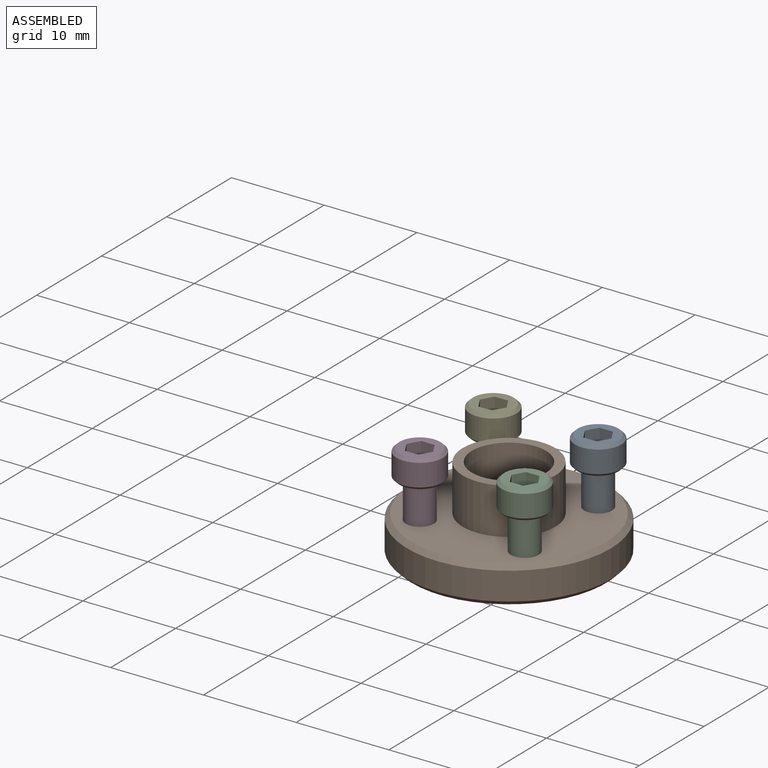
[diagram: assembled view]
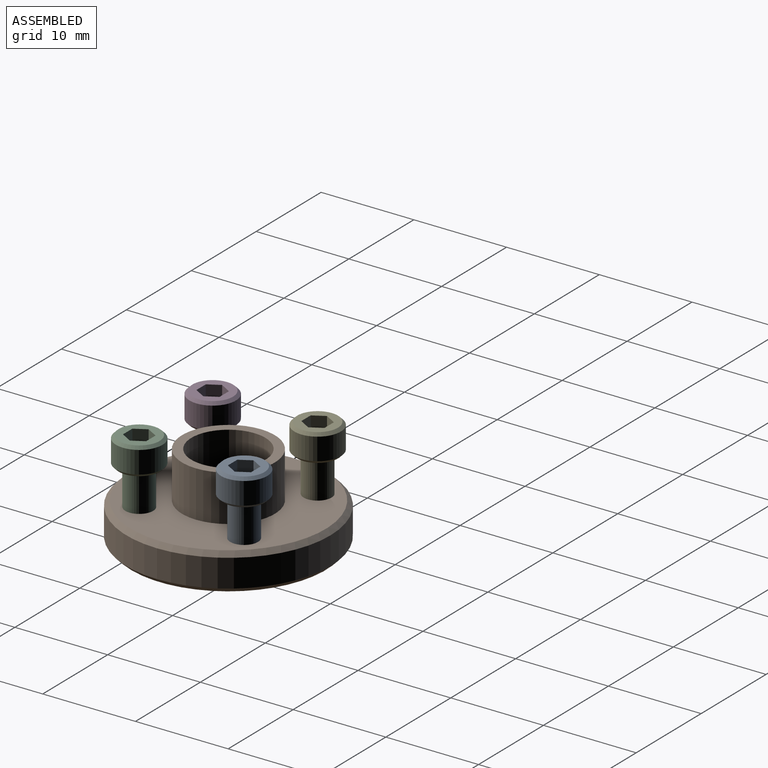
[diagram: assembled view, second angle]
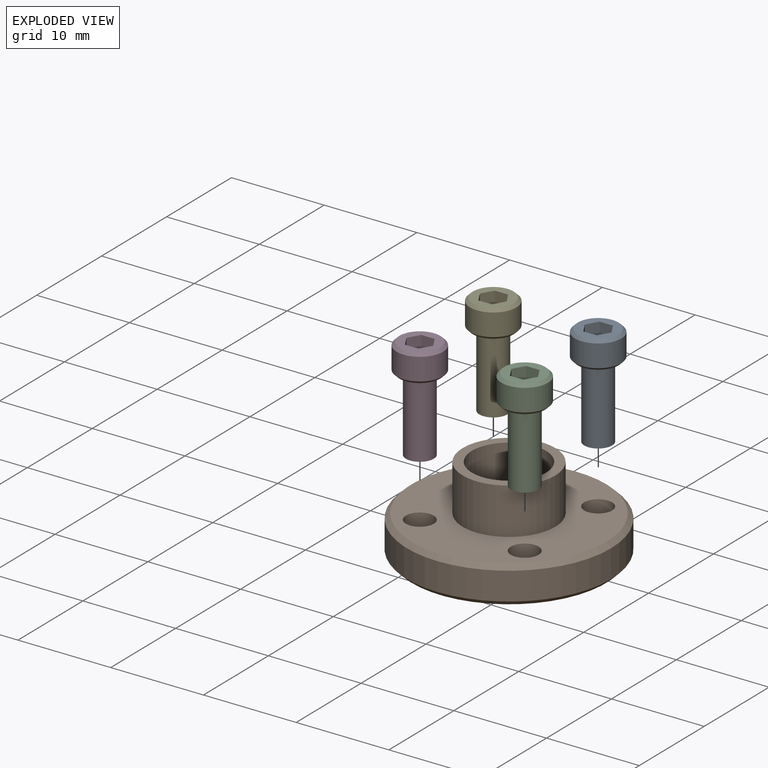
[diagram: exploded view]
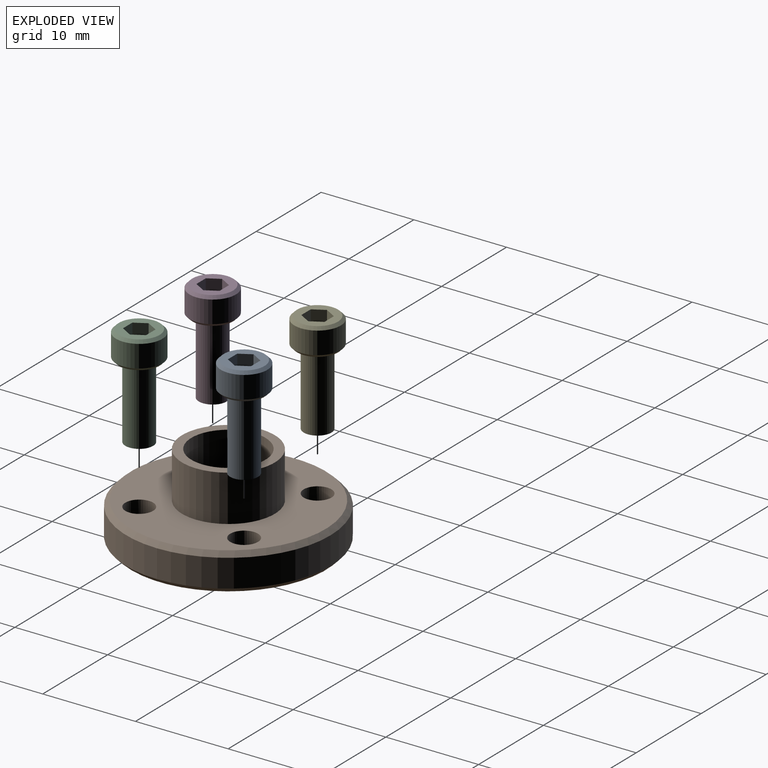
[diagram: exploded view, second angle]
ASSEMBLY  parts=5 mates=4
PART A: 14 faces, bbox 5x5x11 mm
  f0: plane 4.4x4.4mm, normal (0,0,1), area 9.8mm2, adj f5,f7,f8,f9,f10,f11,f12
  f1: cylinder r=2.5mm len=5mm, axis (0,0,1), area 37.7mm2, adj f5,f6
  f2: plane 4.4x4.4mm, normal (0,0,-1), area 8.1mm2, adj f3,f6
  f3: cylinder r=1.5mm len=8mm, axis (0,0,1), area 75.4mm2, adj f2,f4
  f4: plane 3x3mm, normal (0,0,-1), area 7.1mm2, adj f3
  f5: cone r=2.2mm half-angle=45deg, axis (0,0,-1), area 6.3mm2, adj f0,f1
  f6: cone r=2.5mm half-angle=45deg, axis (0,0,1), area 6.3mm2, adj f1,f2
  f7: plane 1.5x1.25mm, normal (-0.87,0.5,0), area 2.2mm2, adj f0,f8,f12,f13
  f8: plane 1.5x1.25mm, normal (-0.87,-0.5,0), area 2.2mm2, adj f0,f7,f9,f13
  f9: plane 1.5x1.44mm, normal (0,-1,0), area 2.2mm2, adj f0,f8,f10,f13
  f10: plane 1.5x1.25mm, normal (0.87,-0.5,0), area 2.2mm2, adj f0,f9,f11,f13
  f11: plane 1.5x1.25mm, normal (0.87,0.5,0), area 2.2mm2, adj f0,f10,f12,f13
  f12: plane 1.5x1.44mm, normal (0,1,0), area 2.2mm2, adj f0,f7,f11,f13
  f13: plane 2.89x2.5mm, normal (0,0,1), area 5.4mm2, adj f7,f8,f9,f10,f11,f12
PART B: 14 faces, bbox 22x22x10 mm
  f0: cylinder r=5mm len=10mm, axis (0,0,1), area 31.4mm2, adj f1,f7
  f1: plane 10x10mm, normal (0,0,-1), area 28.3mm2, adj f0,f2
  f2: cylinder r=4mm len=10mm, axis (0,0,1), area 251.3mm2, adj f1,f3
  f3: plane 10x10mm, normal (0,0,1), area 28.3mm2, adj f2,f4
  f4: cylinder r=5mm len=10mm, axis (0,0,1), area 157.1mm2, adj f3,f5
  f5: plane 21x21mm, normal (0,0,1), area 239.5mm2, adj f4,f9,f10,f11,f12,f13
  f6: cylinder r=11mm len=22mm, axis (0,0,1), area 207.3mm2, adj f8,f9
  f7: plane 21x21mm, normal (0,0,-1), area 239.5mm2, adj f0,f8,f10,f11,f12,f13
  f8: cone r=11mm half-angle=45deg, axis (0,0,1), area 47.8mm2, adj f6,f7
  f9: cone r=10.5mm half-angle=45deg, axis (0,0,-1), area 47.8mm2, adj f5,f6
  f10: cylinder r=1.5mm len=4mm, axis (0,0,1), area 37.7mm2, adj f5,f7
  f11: cylinder r=1.5mm len=4mm, axis (0,0,1), area 37.7mm2, adj f5,f7
  f12: cylinder r=1.5mm len=4mm, axis (0,0,1), area 37.7mm2, adj f5,f7
  f13: cylinder r=1.5mm len=4mm, axis (0,0,1), area 37.7mm2, adj f5,f7
PART C: same geometry as A
PART D: same geometry as A
PART E: same geometry as A
PLACE A t=(12.72,12.63,4.34)mm
PLACE B t=(7.07,6.97,0.34)mm
PLACE C t=(12.72,1.31,4.34)mm
PLACE D t=(1.41,1.31,4.34)mm
PLACE E t=(1.41,12.63,4.34)mm
MATE fastened C.f1 <-> B.f11  axis (0,0,-1) through (12.72,1.31,1.34)mm
MATE fastened A.f1 <-> B.f10  axis (0,0,1) through (12.72,12.63,1.34)mm
MATE fastened D.f1 <-> B.f12  axis (0,0,1) through (1.41,1.31,1.34)mm
MATE fastened E.f1 <-> B.f13  axis (0,0,-1) through (1.41,12.63,1.34)mm
